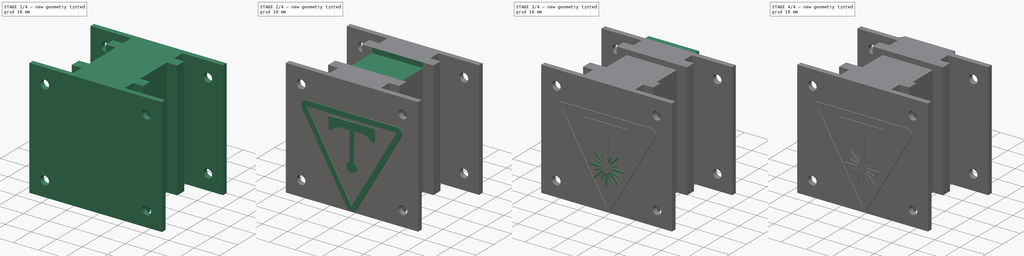
[diagram: build sequence overview — one tinted view per stage of 4, left to right]
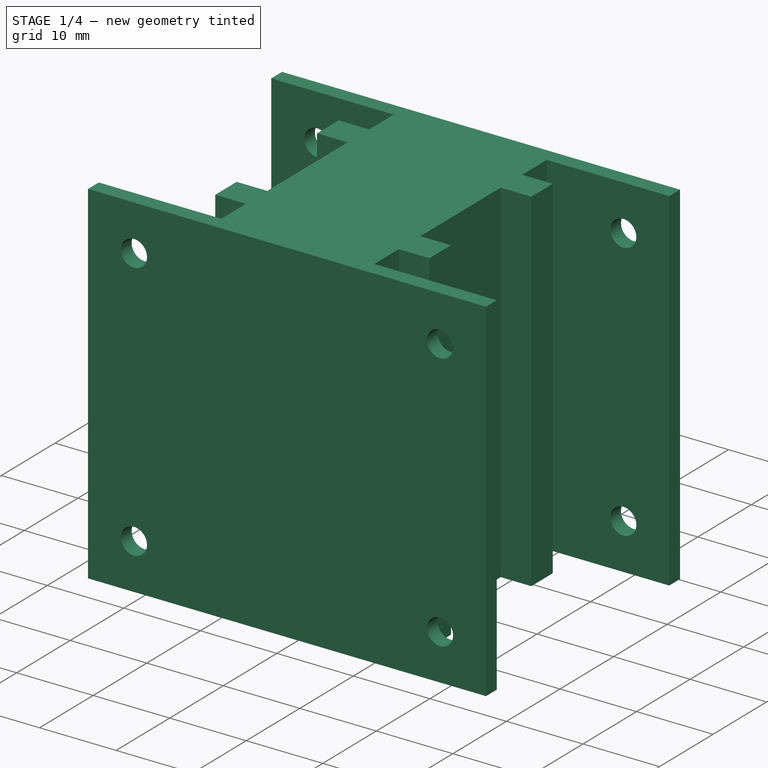
[diagram: stage 1 of 4 — iso view after this stage's code; geometry added in this stage tinted green]
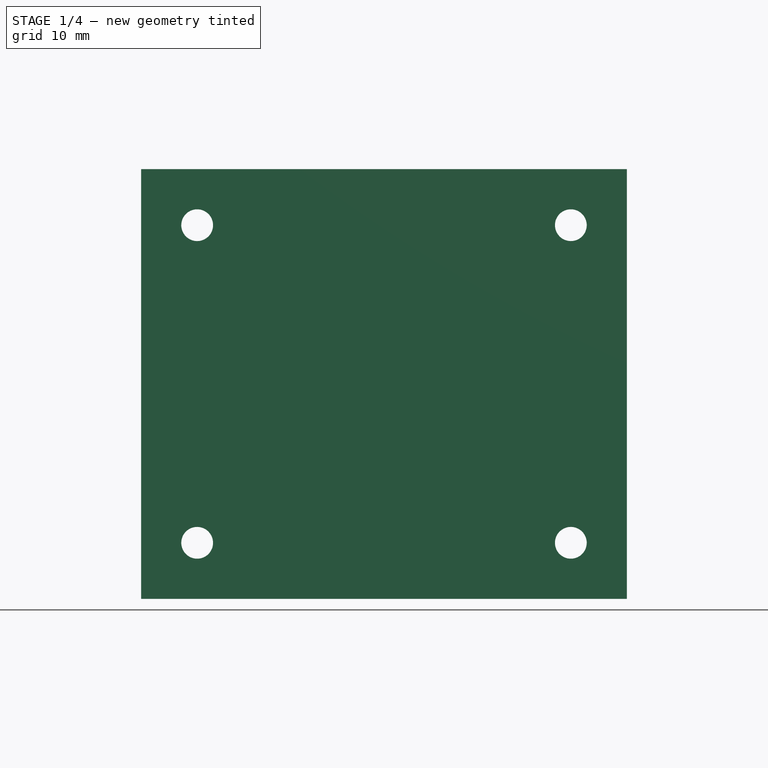
[diagram: stage 1 of 4 — front view after this stage's code; geometry added in this stage tinted green]
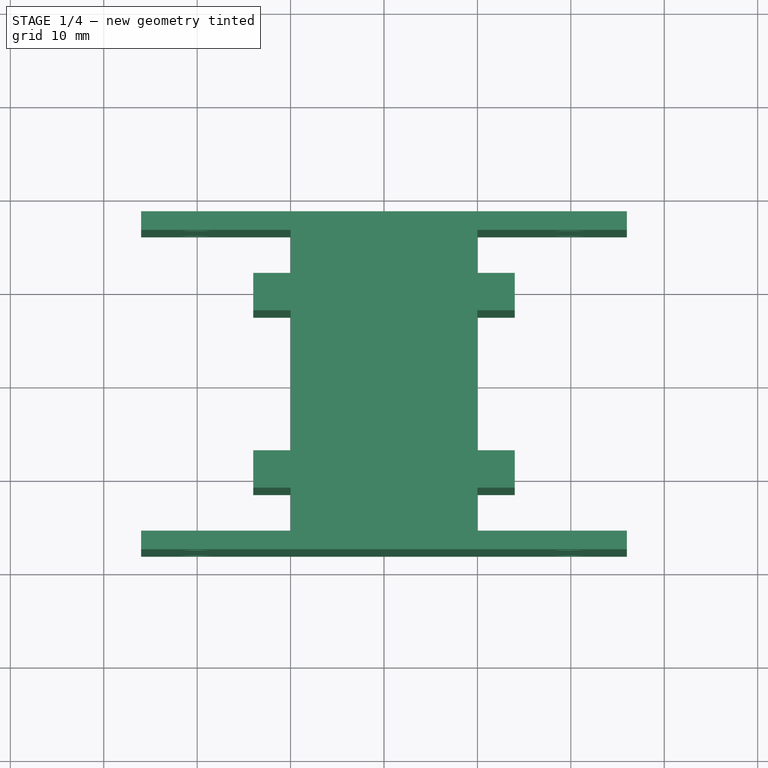
[diagram: stage 1 of 4 — top view after this stage's code; geometry added in this stage tinted green]
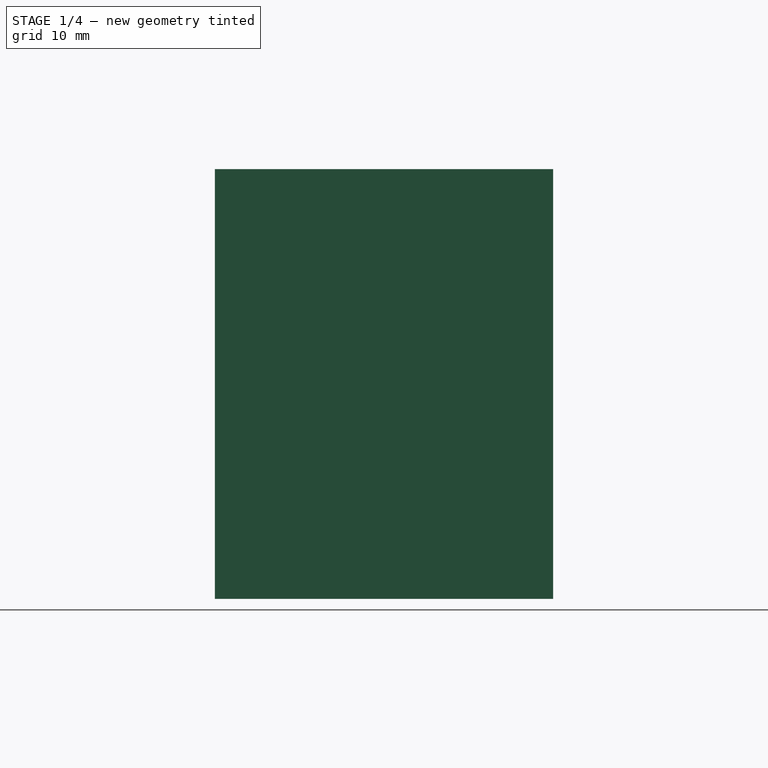
[diagram: stage 1 of 4 — right view after this stage's code; geometry added in this stage tinted green]
FCSTD DOCUMENT  (FreeCAD 0.18.1R)
Label: Base Middle
License: All rights reserved
LicenseURL: http://en.wikipedia.org/wiki/All_rights_reserved
objects: Sketcher::SketchObject×9, PartDesign::Pad×5, PartDesign::Pocket×3, Spreadsheet::Sheet×1, PartDesign::Line×1, PartDesign::PolarPattern×1, PartDesign::Fillet×1, PartDesign::Body×1
note: 29 computed .brp shape members not serialized (recipe doc carries the construction recipe); baked Part::Feature solids carry a one-line shape summary decoded from their .brp

FEATURE [Sketcher::SketchObject] Sketch  label="Sketch Base"
  MapMode = 5
  Support = -> [XY_Plane]
  sketch-geometry (30):
    g0: LineSegment StartX=-26 StartY=18.1 StartZ=0 EndX=-26 EndY=16.1 EndZ=0
    g1: LineSegment StartX=-26 StartY=16.1 StartZ=0 EndX=-10 EndY=16.1 EndZ=0
    g2: LineSegment StartX=-10 StartY=16.1 StartZ=0 EndX=-10 EndY=11.5 EndZ=0
    g3: LineSegment StartX=-10 StartY=11.5 StartZ=0 EndX=-14 EndY=11.5 EndZ=0
    g4: LineSegment StartX=-14 StartY=11.5 StartZ=0 EndX=-14 EndY=7.5 EndZ=0
    g5: LineSegment StartX=-14 StartY=7.5 StartZ=0 EndX=-10 EndY=7.5 EndZ=0
    g6: LineSegment StartX=-10 StartY=7.5 StartZ=0 EndX=-10 EndY=-7.5 EndZ=0
    g7: LineSegment StartX=-10 StartY=-7.5 StartZ=0 EndX=-14 EndY=-7.5 EndZ=0
    g8: LineSegment StartX=-14 StartY=-7.5 StartZ=0 EndX=-14 EndY=-11.5 EndZ=0
    g9: LineSegment StartX=-14 StartY=-11.5 StartZ=0 EndX=-10 EndY=-11.5 EndZ=0
    g10: LineSegment StartX=-10 StartY=-11.5 StartZ=0 EndX=-10 EndY=-16.1 EndZ=0
    g11: LineSegment StartX=-10 StartY=-16.1 StartZ=0 EndX=-26 EndY=-16.1 EndZ=0
    g12: LineSegment StartX=-26 StartY=-16.1 StartZ=0 EndX=-26 EndY=-18.1 EndZ=0
    g13: LineSegment StartX=-26 StartY=-18.1 StartZ=0 EndX=26 EndY=-18.1 EndZ=0
    g14: LineSegment StartX=26 StartY=-18.1 StartZ=0 EndX=26 EndY=-16.1 EndZ=0
    g15: LineSegment StartX=26 StartY=-16.1 StartZ=0 EndX=10 EndY=-16.1 EndZ=0
    g16: LineSegment StartX=10 StartY=-16.1 StartZ=0 EndX=10 EndY=-11.5 EndZ=0
    g17: LineSegment StartX=10 StartY=-11.5 StartZ=0 EndX=14 EndY=-11.5 EndZ=0
    g18: LineSegment StartX=14 StartY=-11.5 StartZ=0 EndX=14 EndY=-7.5 EndZ=0
    g19: LineSegment StartX=14 StartY=-7.5 StartZ=0 EndX=10 EndY=-7.5 EndZ=0
    g20: LineSegment StartX=10 StartY=-7.5 StartZ=0 EndX=10 EndY=7.5 EndZ=0
    g21: LineSegment StartX=10 StartY=7.5 StartZ=0 EndX=14 EndY=7.5 EndZ=0
    g22: LineSegment StartX=14 StartY=7.5 StartZ=0 EndX=14 EndY=11.5 EndZ=0
    g23: LineSegment StartX=14 StartY=11.5 StartZ=0 EndX=10 EndY=11.5 EndZ=0
    g24: LineSegment StartX=10 StartY=11.5 StartZ=0 EndX=10 EndY=16.1 EndZ=0
    g25: LineSegment StartX=10 StartY=16.1 StartZ=0 EndX=26 EndY=16.1 EndZ=0
    g26: LineSegment StartX=26 StartY=16.1 StartZ=0 EndX=26 EndY=18.1 EndZ=0
    g27: LineSegment StartX=26 StartY=18.1 StartZ=0 EndX=-26 EndY=18.1 EndZ=0
    g28: LineSegment [constr] StartX=-10 StartY=7.5 StartZ=0 EndX=10 EndY=-7.5 EndZ=0
    g29: LineSegment [constr] StartX=10 StartY=7.5 StartZ=0 EndX=-10 EndY=-7.5 EndZ=0
  constraints (88):
    c: Coincident(g0,g1)
    c: Horizontal(g1)
    c: Coincident(g1,g2)
    c: Vertical(g2)
    c: Coincident(g2,g3)
    c: Horizontal(g3)
    c: Coincident(g3,g4)
    c: Vertical(g4)
    c: Coincident(g4,g5)
    c: Horizontal(g5)
    c: Coincident(g5,g6)
    c: Vertical(g6)
    c: Coincident(g6,g7)
    c: Horizontal(g7)
    c: Coincident(g7,g8)
    c: Vertical(g8)
    c: Coincident(g8,g9)
    c: Horizontal(g9)
    c: Coincident(g9,g10)
    c: Vertical(g10)
    c: Coincident(g10,g11)
    c: Horizontal(g11)
    c: Coincident(g11,g12)
    c: Vertical(g12)
    c: Coincident(g12,g13)
    c: Horizontal(g13)
    c: Coincident(g13,g14)
    c: Vertical(g14)
    c: Coincident(g14,g15)
    c: Horizontal(g15)
    c: Coincident(g15,g16)
    c: Vertical(g16)
    c: Coincident(g16,g17)
    c: Horizontal(g17)
    c: Coincident(g17,g18)
    c: Vertical(g18)
    c: Coincident(g18,g19)
    c: Horizontal(g19)
    c: Coincident(g19,g20)
    c: Vertical(g20)
    c: Coincident(g20,g21)
    c: Horizontal(g21)
    c: Coincident(g21,g22)
    c: Vertical(g22)
    c: Coincident(g22,g23)
    c: Coincident(g23,g24)
    c: Vertical(g24)
    c: Coincident(g24,g25)
    c: Horizontal(g25)
    c: Coincident(g25,g26)
    c: Vertical(g26)
    c: Coincident(g26,g27)
    c: Horizontal(g27)
    c: Vertical(g0)
    c: Vertical(g0,g12)
    c: Horizontal(g23)
    c: Vertical(g2,g5)
    c: Vertical(g5,g9)
    c: Vertical(g23,g20)
    c: Vertical(g20,g16)
    c: Vertical(g25,g14)
    c: Equal(g0,g26)
    c: Equal(g26,g14)
    c: Equal(g14,g12)
    c: Equal(g10,g2)
    c: Equal(g2,g24)
    c: Equal(g24,g16)
    c: Equal(g4,g5)
    c: Equal(g5,g8)
    c: Equal(g8,g7)
    c: Equal(g7,g18)
    c: Equal(g18,g19)
    c: Equal(g19,g22)
    c: Equal(g22,g23)
    c: Coincident(g27,g0)
    c: Equal(g1,g25)
    c: Distance(g0) = 2
    c: Distance(g4) = 4
    c: Distance(g6) = 15
    c: Distance(g1,g24) = 20
    c: Distance(g13) = 52
    c: Distance(g1,g11) = 32.2
    c: Coincident(g28,g5)
    c: Coincident(g28,g19)
    c: Coincident(g29,g20)
    c: Coincident(g29,g6)
    c: PointOnObject(g-1,g29)
    c: PointOnObject(g-1,g28)
FEATURE [PartDesign::Pad] Pad  label="Base"
  Length = 46
  Length2 = 100
  Profile = -> Sketch
  Type = 0
FEATURE [Sketcher::SketchObject] Sketch001  label="Sketch Base Holes"
  ExternalGeometry = -> [Pad]
  MapMode = 5
  Placement = pos=(0,-18.1,0) rot=(1,0,0;1.5708rad)
  Support = -> [Pad]
  expr: Constraints[8] = Screws.m3tD
  sketch-geometry (8):
    g0: Circle CenterX=-20 CenterY=40 CenterZ=0 NormalX=0 NormalY=0 NormalZ=1 AngleXU=0 Radius=1.7
    g1: Circle CenterX=20 CenterY=40 CenterZ=0 NormalX=0 NormalY=0 NormalZ=1 AngleXU=0 Radius=1.7
    g2: Circle CenterX=20 CenterY=6 CenterZ=0 NormalX=0 NormalY=0 NormalZ=1 AngleXU=0 Radius=1.7
    g3: Circle CenterX=-20 CenterY=6 CenterZ=0 NormalX=0 NormalY=0 NormalZ=1 AngleXU=0 Radius=1.7
    g4: LineSegment [constr] StartX=-26 StartY=46 StartZ=0 EndX=-20 EndY=40 EndZ=0
    g5: LineSegment [constr] StartX=26 StartY=46 StartZ=0 EndX=20 EndY=40 EndZ=0
    g6: LineSegment [constr] StartX=26 StartY=0 StartZ=0 EndX=20 EndY=6 EndZ=0
    g7: LineSegment [constr] StartX=-26 StartY=0 StartZ=0 EndX=-20 EndY=6 EndZ=0
  constraints (20):
    c: Equal(g0,g3)
    c: Equal(g3,g1)
    c: Equal(g1,g2)
    c: Vertical(g3,g0)
    c: Vertical(g1,g2)
    c: Horizontal(g0,g1)
    c: Distance(g0,g1) = 40
    c: Distance(g0,g3) = 34
    c: Diameter(g0) = 3.4
    c: Coincident(g4,g-3)
    c: Coincident(g4,g0)
    c: Coincident(g5,g-4)
    c: Coincident(g5,g1)
    c: Coincident(g6,g-4)
    c: Coincident(g6,g2)
    c: Coincident(g7,g-3)
    c: Coincident(g7,g3)
    c: Equal(g7,g6)
    c: Equal(g6,g4)
    c: Equal(g4,g5)
FEATURE [PartDesign::Pocket] Pocket  label="Base Holes"
  BaseFeature = -> Pad
  Length = 5
  Length2 = 100
  Profile = -> Sketch001
  Type = 1
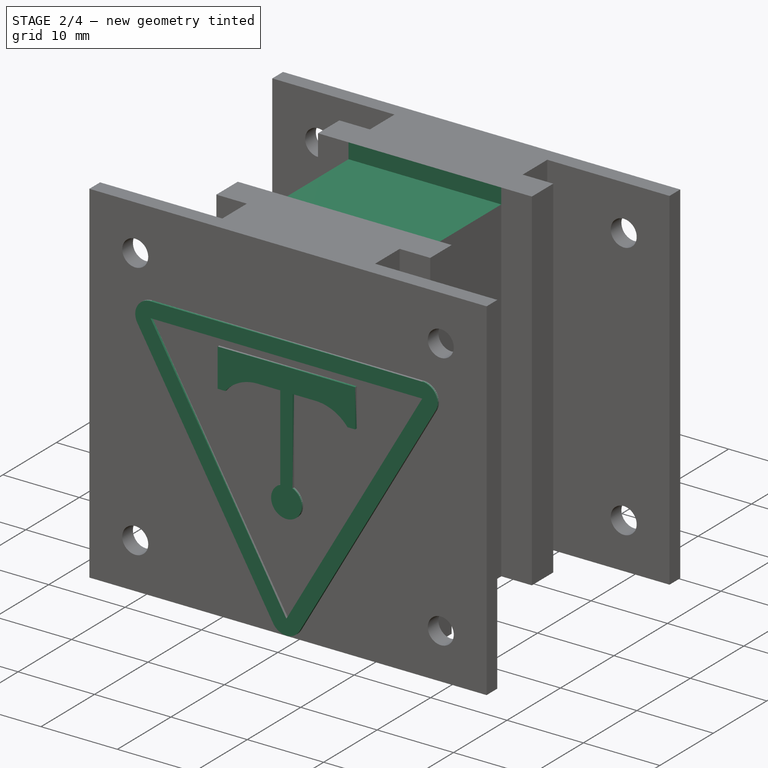
[diagram: stage 2 of 4 — iso view after this stage's code; geometry added in this stage tinted green]
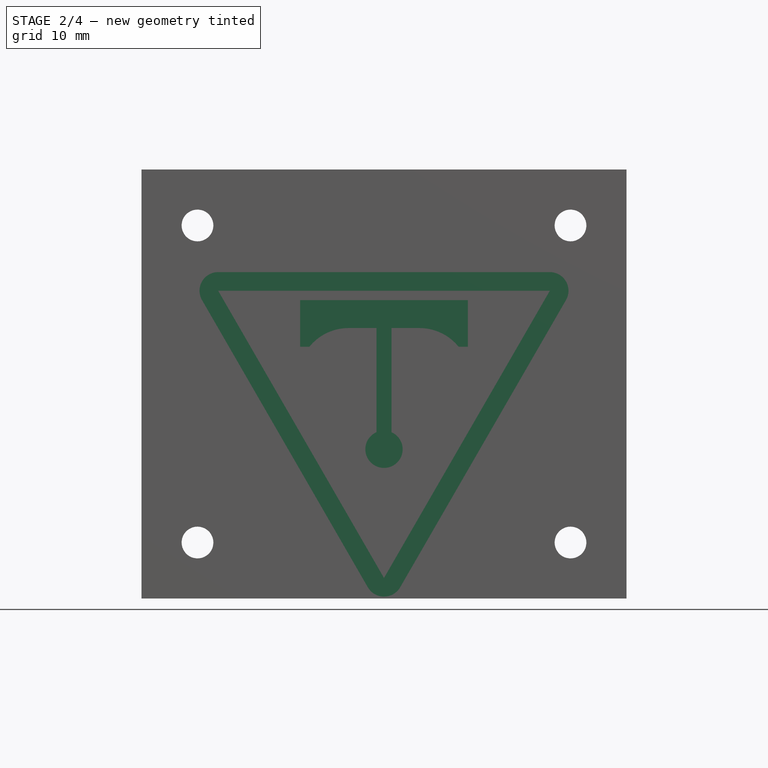
[diagram: stage 2 of 4 — front view after this stage's code; geometry added in this stage tinted green]
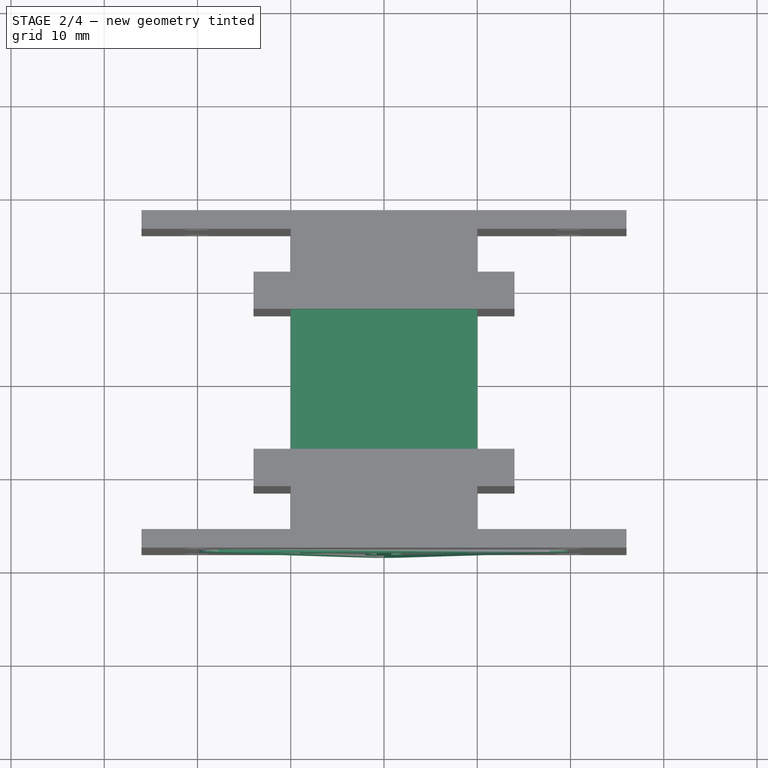
[diagram: stage 2 of 4 — top view after this stage's code; geometry added in this stage tinted green]
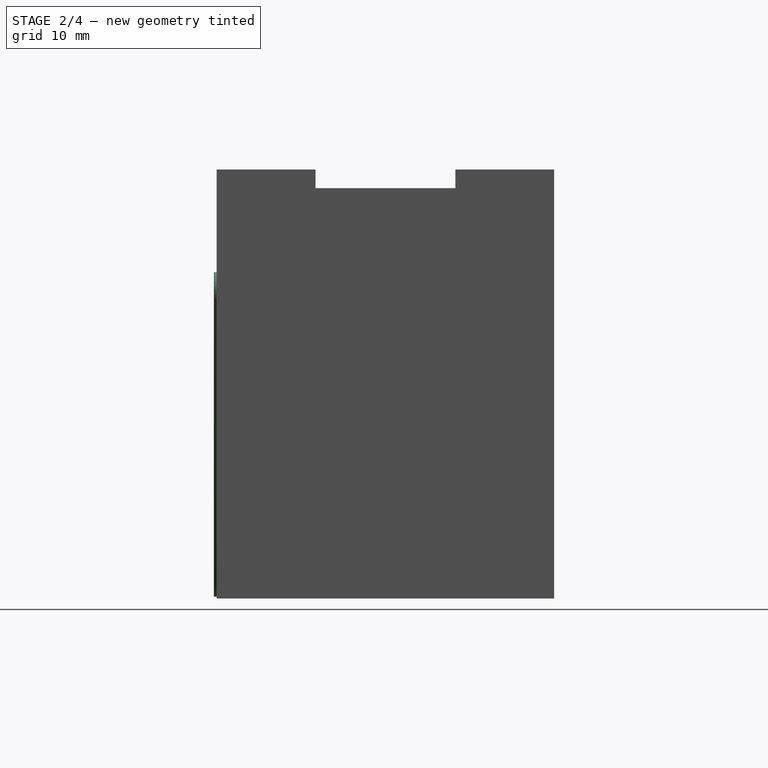
[diagram: stage 2 of 4 — right view after this stage's code; geometry added in this stage tinted green]
FEATURE [Spreadsheet::Sheet] Spreadsheet  label="Screws"
  cells = A1=Screw Type; B1=Length; D1=Diameter Loose; F1=Diameter Tight; A2=M3 Tapping; B2=m3tl; C2(m3tl)==12mm; D2=m3tD; E2(m3tD)==3.4mm; F2=m3td; G2(m3td)==2.8mm; A3=M3; B3=m3l; C3(m3l)==30mm; D3=m3D; E3(m3D)==3.2mm; F3=m3d; G3(m3d)==2.8mm
FEATURE [Sketcher::SketchObject] Sketch002  label="Sketch Rail Cut"
  ExternalGeometry = -> [Pocket]
  MapMode = 5
  Placement = pos=(0,0,46) rot=(0,0,1;0rad)
  Support = -> [Pocket]
  sketch-geometry (4):
    g0: LineSegment StartX=-10 StartY=7.5 StartZ=0 EndX=10 EndY=7.5 EndZ=0
    g1: LineSegment StartX=10 StartY=7.5 StartZ=0 EndX=10 EndY=-7.5 EndZ=0
    g2: LineSegment StartX=10 StartY=-7.5 StartZ=0 EndX=-10 EndY=-7.5 EndZ=0
    g3: LineSegment StartX=-10 StartY=-7.5 StartZ=0 EndX=-10 EndY=7.5 EndZ=0
  constraints (10):
    c: Coincident(g0,g1)
    c: Coincident(g1,g2)
    c: Coincident(g2,g3)
    c: Coincident(g3,g0)
    c: Horizontal(g0)
    c: Horizontal(g2)
    c: Vertical(g1)
    c: Vertical(g3)
    c: Coincident(g1,g-4)
    c: Coincident(g0,g-3)
FEATURE [PartDesign::Pocket] Pocket001  label="Rail Cut"
  BaseFeature = -> Pocket
  Length = 2
  Length2 = 100
  Profile = -> Sketch002
  Type = 0
FEATURE [Sketcher::SketchObject] Sketch003  label="Sketch Logo T"
  MapMode = 5
  Placement = pos=(0,-18.1,0) rot=(1,0,0;1.5708rad)
  Support = -> [Pocket001]
  sketch-geometry (13):
    g0: LineSegment StartX=-9 StartY=27 StartZ=0 EndX=-9 EndY=32 EndZ=0
    g1: LineSegment StartX=-9 StartY=32 StartZ=0 EndX=9 EndY=32 EndZ=0
    g2: LineSegment StartX=9 StartY=32 StartZ=0 EndX=9 EndY=27 EndZ=0
    g3: LineSegment StartX=-0.8 StartY=17.833 StartZ=0 EndX=-0.8 EndY=29 EndZ=0
    g4: LineSegment StartX=-0.8 StartY=29 StartZ=0 EndX=-3.8 EndY=29 EndZ=0
    g5: LineSegment StartX=-9 StartY=27 StartZ=0 EndX=-8 EndY=27 EndZ=0
    g6: LineSegment StartX=9 StartY=27 StartZ=0 EndX=8 EndY=27 EndZ=0
    g7: LineSegment StartX=0.8 StartY=17.833 StartZ=0 EndX=0.8 EndY=29 EndZ=0
    g8: LineSegment StartX=0.8 StartY=29 StartZ=0 EndX=3.8 EndY=29 EndZ=0
    g9: ArcOfCircle CenterX=-3.8 CenterY=23.59 CenterZ=0 NormalX=0 NormalY=0 NormalZ=1 AngleXU=0 Radius=5.41 StartAngle=1.5708 EndAngle=2.45963
    g10: ArcOfCircle CenterX=3.8 CenterY=23.59 CenterZ=0 NormalX=0 NormalY=0 NormalZ=1 AngleXU=0 Radius=5.41 StartAngle=0.681958 EndAngle=1.5708
    g11: Circle [constr] CenterX=0 CenterY=16 CenterZ=0 NormalX=0 NormalY=0 NormalZ=1 AngleXU=0 Radius=2
    g12: ArcOfCircle CenterX=0 CenterY=16 CenterZ=0 NormalX=0 NormalY=0 NormalZ=1 AngleXU=0 Radius=2 StartAngle=1.98231 EndAngle=7.44246
  constraints (39):
    c: Vertical(g0)
    c: Coincident(g0,g1)
    c: Horizontal(g1)
    c: Coincident(g1,g2)
    c: Vertical(g2)
    c: Vertical(g3)
    c: Coincident(g3,g4)
    c: Horizontal(g4)
    c: Coincident(g0,g5)
    c: Horizontal(g5)
    c: Coincident(g2,g6)
    c: Vertical(g7)
    c: Coincident(g7,g8)
    c: Horizontal(g8)
    c: Coincident(g9,g5)
    c: Coincident(g10,g6)
    c: Horizontal(g3,g7)
    c: Horizontal(g7,g3)
    c: Equal(g5,g6)
    c: Equal(g4,g8)
    c: Equal(g9,g10)
    c: Tangent(g9,g4) = -1.5708
    c: Tangent(g10,g8) = 1.5708
    c: Horizontal(g5,g6)
    c: Horizontal(g6)
    c: Distance(g5) = 1
    c: Distance(g3,g7) = 1.6
    c: Distance(g4,g1) = 3
    c: Distance(g4) = 3
    c: Distance(g2) = 5
    c: Distance(g1) = 18
    c: PointOnObject(g11,g-2)
    c: Diameter(g11) = 4
    c: Distance(g11,g-1) = 16
    c: PointOnObject(g3,g11)
    c: Coincident(g12,g11)
    c: Coincident(g12,g3)
    c: Coincident(g12,g7)
    c: Distance(g-1,g1) = 32
FEATURE [PartDesign::Pad] Pad001  label="Logo T"
  BaseFeature = -> Pocket001
  Length = 0.3
  Length2 = 100
  Profile = -> Sketch003
  Type = 0
FEATURE [Sketcher::SketchObject] Sketch004  label="Sketch Logo Triangle"
  ExternalGeometry = -> [Pad001]
  MapMode = 5
  Placement = pos=(0,-18.1,0) rot=(1,0,0;1.5708rad)
  Support = -> [Pad001]
  sketch-geometry (9):
    g0: LineSegment StartX=0 StartY=2.2 StartZ=0 EndX=-17.7824 EndY=33 EndZ=0
    g1: LineSegment StartX=-17.7824 StartY=33 StartZ=0 EndX=17.7824 EndY=33 EndZ=0
    g2: LineSegment StartX=17.7824 StartY=33 StartZ=0 EndX=0 EndY=2.2 EndZ=0
    g3: ArcOfCircle CenterX=-17.7824 CenterY=33 CenterZ=0 NormalX=0 NormalY=0 NormalZ=1 AngleXU=0 Radius=2 StartAngle=1.5708 EndAngle=3.66519
    g4: ArcOfCircle CenterX=17.7824 CenterY=33 CenterZ=0 NormalX=0 NormalY=0 NormalZ=1 AngleXU=0 Radius=2 StartAngle=5.75959 EndAngle=7.85398
    g5: ArcOfCircle CenterX=0 CenterY=2.2 CenterZ=0 NormalX=0 NormalY=0 NormalZ=1 AngleXU=0 Radius=2 StartAngle=3.66519 EndAngle=5.75959
    g6: LineSegment StartX=-19.5144 StartY=32 StartZ=0 EndX=-1.73205 EndY=1.2 EndZ=0
    g7: LineSegment StartX=19.5144 StartY=32 StartZ=0 EndX=1.73205 EndY=1.2 EndZ=0
    g8: LineSegment StartX=-17.7824 StartY=35 StartZ=0 EndX=17.7824 EndY=35 EndZ=0
  constraints (21):
    c: PointOnObject(g0,g-2)
    c: Coincident(g0,g1)
    c: Horizontal(g1)
    c: Coincident(g1,g2)
    c: Coincident(g2,g0)
    c: Equal(g2,g0)
    c: Equal(g0,g1)
    c: Distance(g-3,g1) = 1
    c: Distance(g-1,g0) = 2.2
    c: Coincident(g3,g0)
    c: Coincident(g4,g1)
    c: Coincident(g5,g0)
    c: Horizontal(g8)
    c: Tangent(g8,g3) = 1.5708
    c: Tangent(g6,g3) = -1.5708
    c: Tangent(g8,g4) = 1.5708
    c: Tangent(g7,g4) = 1.5708
    c: Tangent(g7,g5) = 1.5708
    c: Tangent(g6,g5) = -1.5708
    c: Distance(g0,g6) = 2
    c: Parallel(g0,g6)
FEATURE [PartDesign::Pad] Pad002  label="Logo Triangle"
  BaseFeature = -> Pad001
  Length = 0.3
  Length2 = 100
  Profile = -> Sketch004
  Type = 0
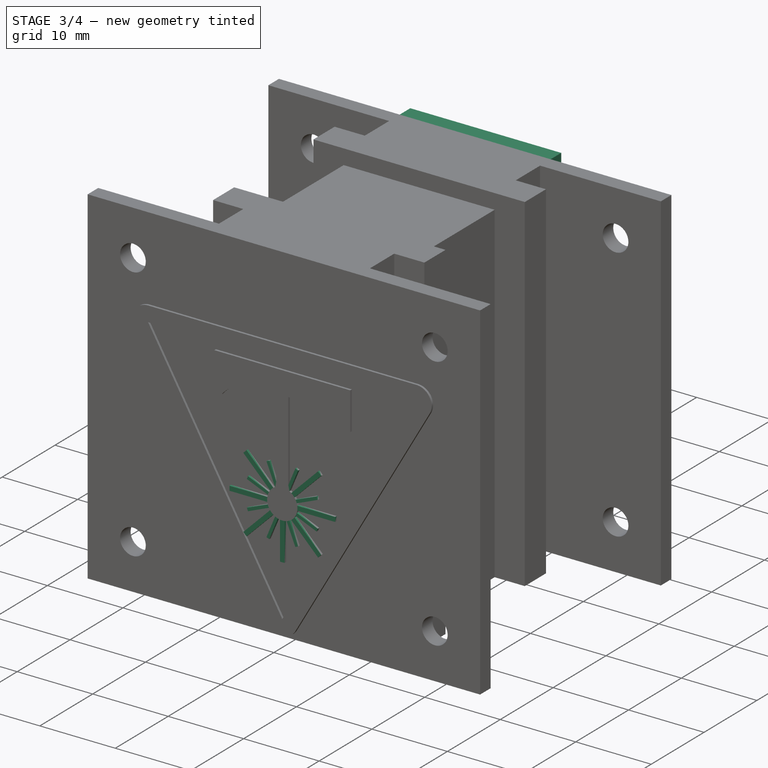
[diagram: stage 3 of 4 — iso view after this stage's code; geometry added in this stage tinted green]
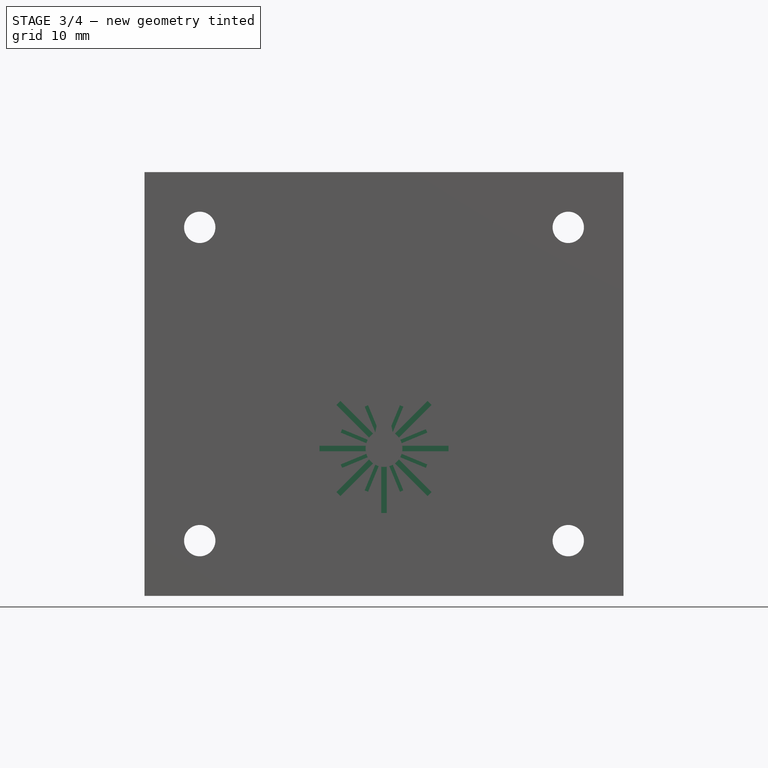
[diagram: stage 3 of 4 — front view after this stage's code; geometry added in this stage tinted green]
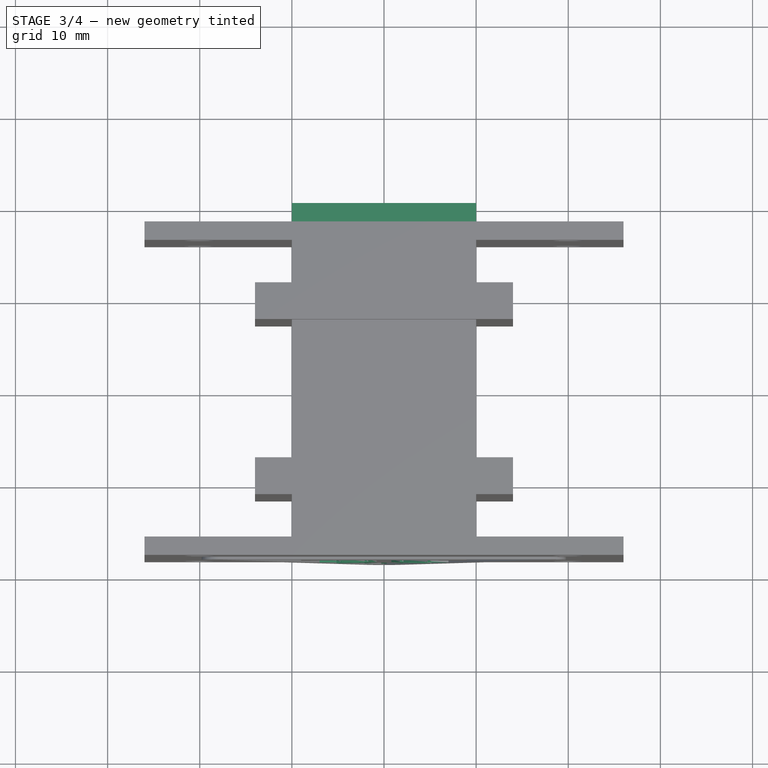
[diagram: stage 3 of 4 — top view after this stage's code; geometry added in this stage tinted green]
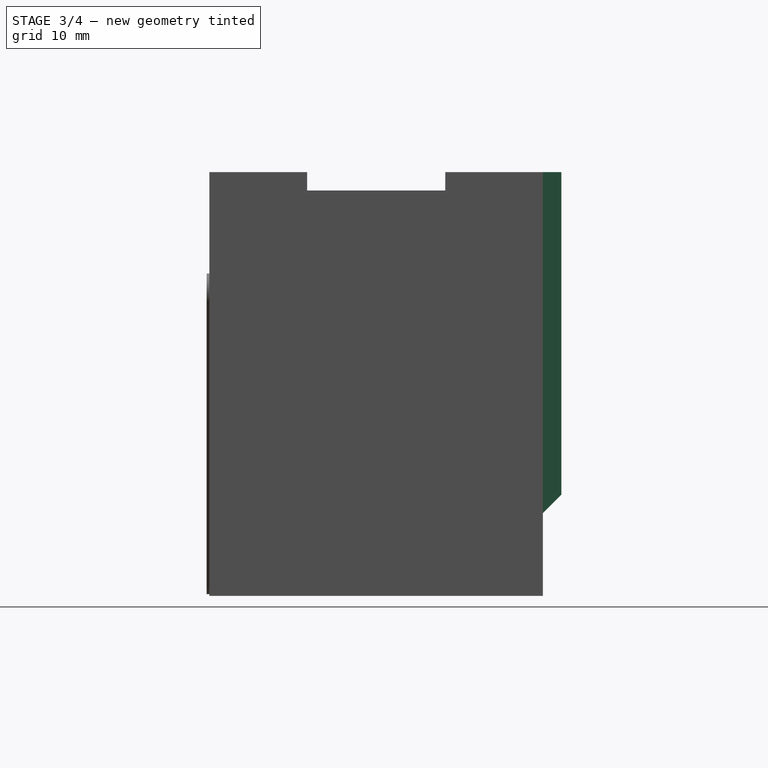
[diagram: stage 3 of 4 — right view after this stage's code; geometry added in this stage tinted green]
FEATURE [Sketcher::SketchObject] Sketch005  label="Sketch Logo Rays"
  ExternalGeometry = -> [Pad002]
  MapMode = 5
  Placement = pos=(0,-18.1,0) rot=(1,0,0;1.5708rad)
  Support = -> [Pad002]
  sketch-geometry (9):
    g0: LineSegment StartX=-0.3 StartY=14.0226 StartZ=0 EndX=-0.3 EndY=9 EndZ=0
    g1: LineSegment StartX=-0.3 StartY=9 StartZ=0 EndX=0.3 EndY=9 EndZ=0
    g2: LineSegment StartX=0.3 StartY=9 StartZ=0 EndX=0.3 EndY=14.0226 EndZ=0
    g3: ArcOfCircle CenterX=0 CenterY=16 CenterZ=0 NormalX=0 NormalY=0 NormalZ=1 AngleXU=0 Radius=2 StartAngle=4.56182 EndAngle=4.86296
    g4: LineSegment StartX=-0.946306 StartY=14.238 StartZ=0 EndX=-2.09819 EndY=11.4571 EndZ=0
    g5: LineSegment StartX=-2.09819 StartY=11.4571 StartZ=0 EndX=-1.72864 EndY=11.3041 EndZ=0
    g6: LineSegment StartX=-1.72864 StartY=11.3041 StartZ=0 EndX=-0.576755 EndY=14.085 EndZ=0
    g7: LineSegment [constr] StartX=0 StartY=16 StartZ=0 EndX=-1.91342 EndY=11.3806 EndZ=0
    g8: ArcOfCircle CenterX=0 CenterY=16 CenterZ=0 NormalX=0 NormalY=0 NormalZ=1 AngleXU=0 Radius=2 StartAngle=4.21952 EndAngle=4.41986
  constraints (26):
    c: PointOnObject(g0,g-3)
    c: Vertical(g0)
    c: Coincident(g0,g1)
    c: Horizontal(g1)
    c: Coincident(g1,g2)
    c: Vertical(g2)
    c: Horizontal(g0,g2)
    c: Distance(g-3,g1) = 7
    c: Coincident(g3,g-3)
    c: Coincident(g3,g0)
    c: Coincident(g3,g2)
    c: PointOnObject(g4,g-3)
    c: Coincident(g4,g5)
    c: Coincident(g5,g6)
    c: Parallel(g6,g4)
    c: Distance(g1) = 0.6
    c: Perpendicular(g5,g4)
    c: Distance(g5) = 0.4
    c: Coincident(g7,g3)
    c: PointOnObject(g7,g5)
    c: Symmetric(g5,g4,g7)
    c: Angle(g7,g-2) = 0.392699
    c: Coincident(g8,g3)
    c: Coincident(g8,g6)
    c: Coincident(g8,g4)
    c: Distance(g3,g5) = 5
FEATURE [PartDesign::Pad] Pad003  label="Logo Rays"
  BaseFeature = -> Pad002
  Length = 0.3
  Length2 = 100
  Profile = -> Sketch005
  Type = 0
FEATURE [Sketcher::SketchObject] Sketch006  label="Sketch Line"
  ExternalGeometry = -> [Pad003]
  MapMode = 5
  Placement = pos=(0,0,0) rot=(0.57735,0.57735,0.57735;2.0944rad)
  Support = -> [YZ_Plane]
  sketch-geometry (1):
    g0: LineSegment StartX=-18.1 StartY=16 StartZ=0 EndX=-64.1 EndY=16 EndZ=0
  constraints (4):
    c: PointOnObject(g0,g-3)
    c: Horizontal(g0)
    c: DistanceY(g-3,g0) = 16
    c: Equal(g-3,g0)
FEATURE [PartDesign::Line] DatumLine
  AttacherType = Attacher::AttachEngineLine
  MapMode = 29
  Placement = pos=(-3.6e-15,3.6e-15,16) rot=(1,0,0;1.5708rad)
  Support = -> [Sketch006]
FEATURE [PartDesign::PolarPattern] PolarPattern  label="Logo PolarPattern Rays"
  Angle = 360
  Axis = -> DatumLine
  BaseFeature = -> Pad003
  Occurrences = 8
  Originals = -> [Pad003]
FEATURE [Sketcher::SketchObject] Sketch007  label="Sketch Back Pad"
  ExternalGeometry = -> [PolarPattern]
  MapMode = 5
  Placement = pos=(0,0,0) rot=(0.57735,0.57735,0.57735;2.0944rad)
  Support = -> [YZ_Plane]
  sketch-geometry (4):
    g0: LineSegment StartX=18.1 StartY=46 StartZ=0 EndX=18.1 EndY=9 EndZ=0
    g1: LineSegment StartX=18.1 StartY=9 StartZ=0 EndX=20.1 EndY=11 EndZ=0
    g2: LineSegment StartX=20.1 StartY=11 StartZ=0 EndX=20.1 EndY=46 EndZ=0
    g3: LineSegment StartX=20.1 StartY=46 StartZ=0 EndX=18.1 EndY=46 EndZ=0
  constraints (11):
    c: PointOnObject(g0,g-3)
    c: Coincident(g0,g1)
    c: Coincident(g1,g2)
    c: Vertical(g2)
    c: Coincident(g2,g3)
    c: Coincident(g3,g0)
    c: Horizontal(g3)
    c: Distance(g3) = 2
    c: Angle(g1,g0) = 0.785398
    c: Distance(g2) = 35
    c: Coincident(g-3,g0)
FEATURE [PartDesign::Pad] Pad004  label="Back Pad"
  BaseFeature = -> PolarPattern
  Length = 20
  Length2 = 100
  Midplane = true
  Profile = -> Sketch007
  Type = 0
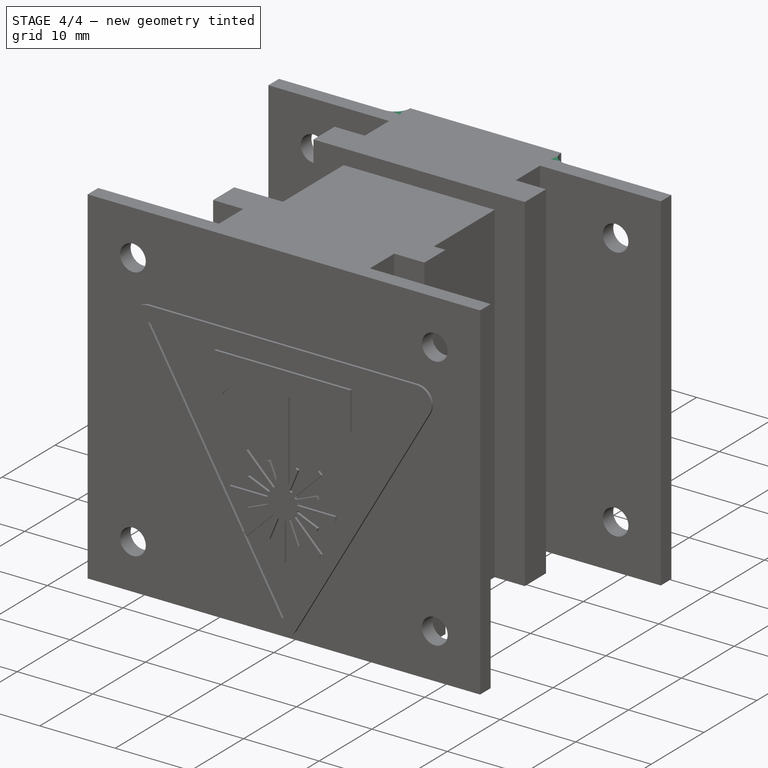
[diagram: stage 4 of 4 — iso view after this stage's code; geometry added in this stage tinted green]
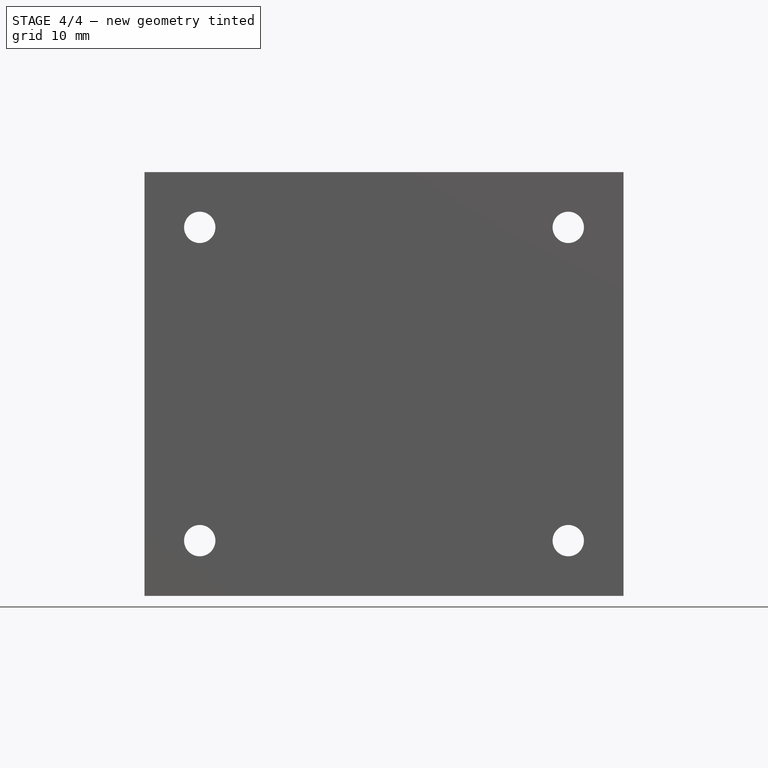
[diagram: stage 4 of 4 — front view after this stage's code; geometry added in this stage tinted green]
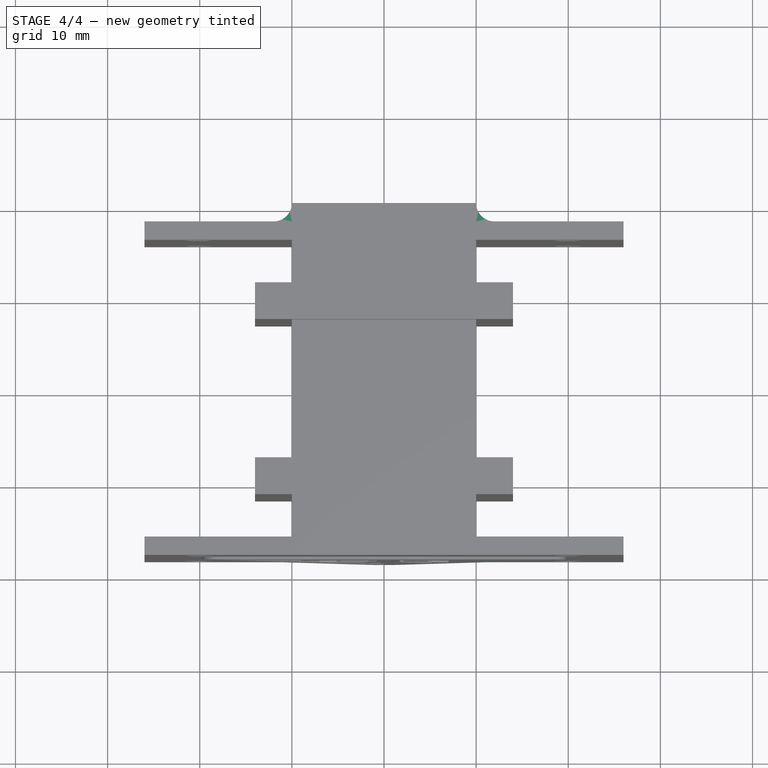
[diagram: stage 4 of 4 — top view after this stage's code; geometry added in this stage tinted green]
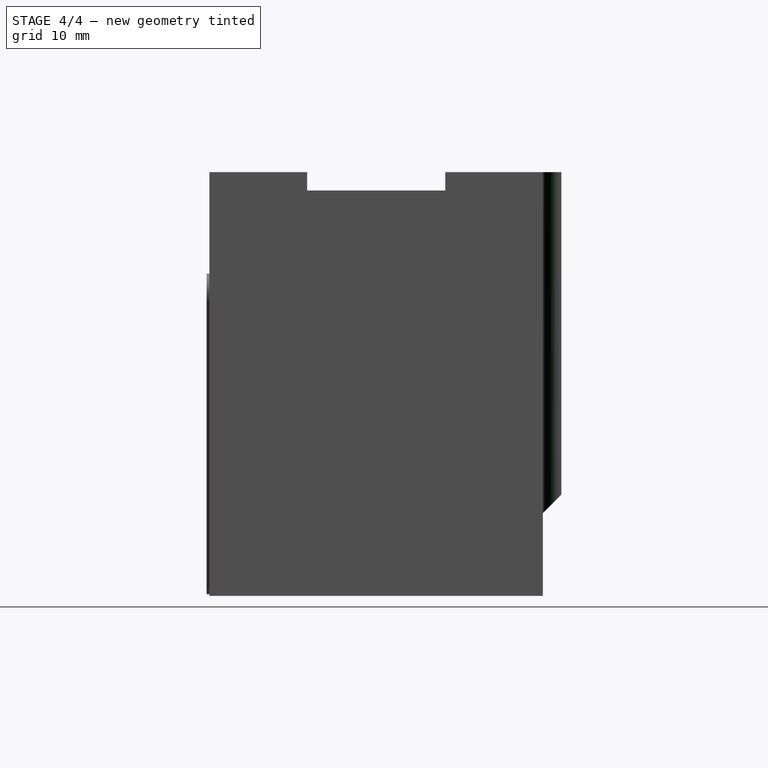
[diagram: stage 4 of 4 — right view after this stage's code; geometry added in this stage tinted green]
FEATURE [PartDesign::Fillet] Fillet  label="Back Fillet"
  Base = -> Pad004 [Edge9,Edge7]
  BaseFeature = -> Pad004
  Radius = 1.99
FEATURE [Sketcher::SketchObject] Sketch008  label="Sketch Back Holes"
  ExternalGeometry = -> [Fillet]
  MapMode = 5
  Placement = pos=(4.5e-15,20.1,-4.5e-15) rot=(0,0.707107,0.707107;3.14159rad)
  Support = -> [Fillet]
  expr: Constraints[5] = Screws.m3d
  sketch-geometry (2):
    g0: Circle CenterX=0 CenterY=21 CenterZ=0 NormalX=0 NormalY=0 NormalZ=1 AngleXU=0 Radius=1.4
    g1: Circle CenterX=0 CenterY=41 CenterZ=0 NormalX=0 NormalY=0 NormalZ=1 AngleXU=0 Radius=1.4
  constraints (6):
    c: PointOnObject(g0,g-2)
    c: PointOnObject(g1,g-2)
    c: Equal(g1,g0)
    c: Distance(g0,g-3) = 10
    c: Distance(g1,g-3) = 30
    c: Diameter(g1) = 2.8
FEATURE [PartDesign::Pocket] Pocket002  label="Back Holes"
  BaseFeature = -> Fillet
  Length = 11
  Length2 = 100
  Profile = -> Sketch008
  Type = 0
  expr: Length = Screws.m3tl - 1mm
FEATURE [PartDesign::Body] Body  label="Base Middle"
  Group = -> [Sketch,Pad,Sketch001,Pocket,Sketch002,Pocket001,Sketch003,Pad001,Sketch004,Pad002,Sketch005,Pad003,Sketch006,DatumLine,PolarPattern,Sketch007,Pad004,Fillet,Sketch008,Pocket002]
  Origin = -> Origin
  Tip = -> Pocket002
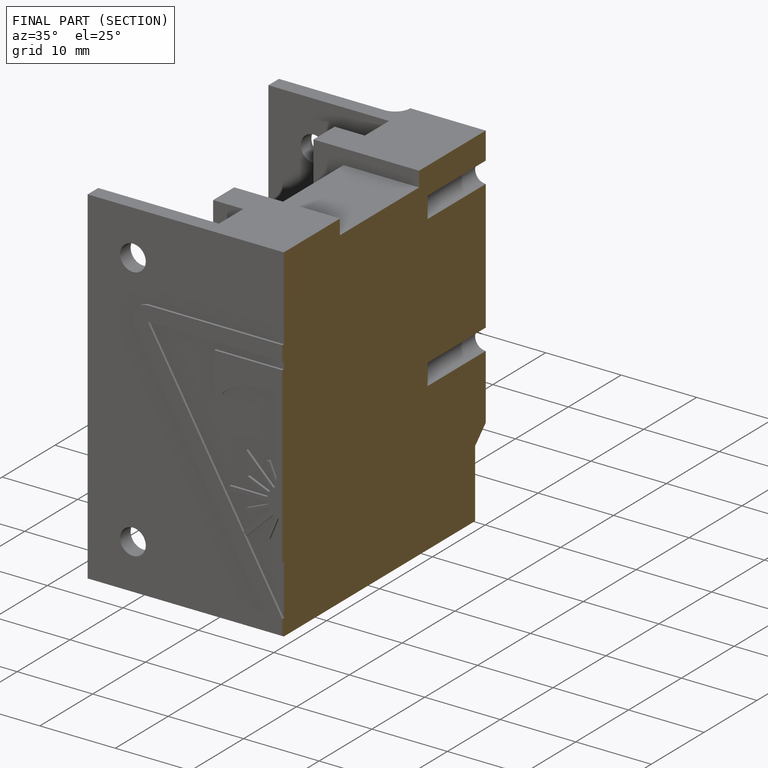
[diagram: finished part — half-section view (interior)]
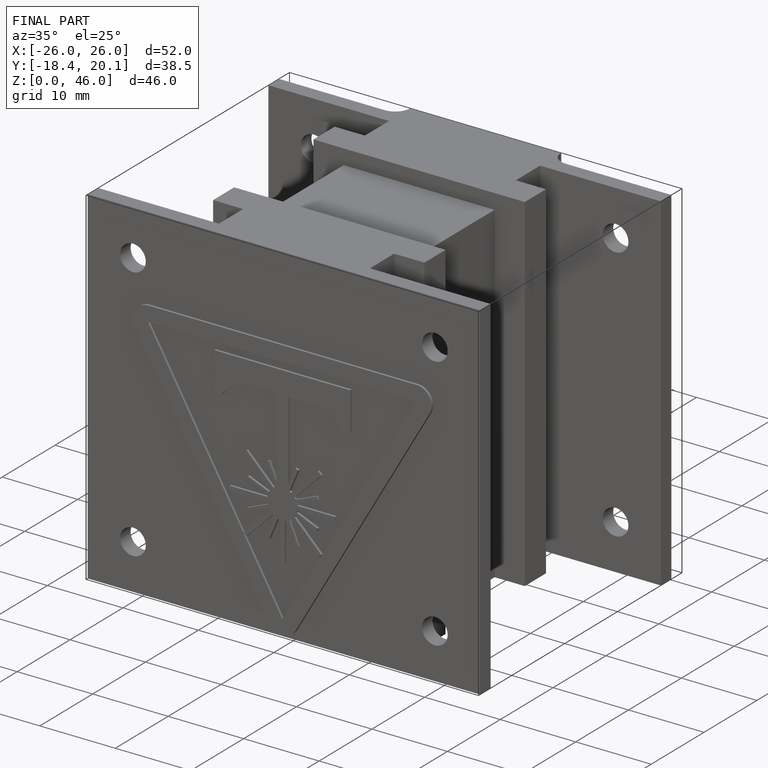
[diagram: finished part — iso view with bounding-box wireframe]
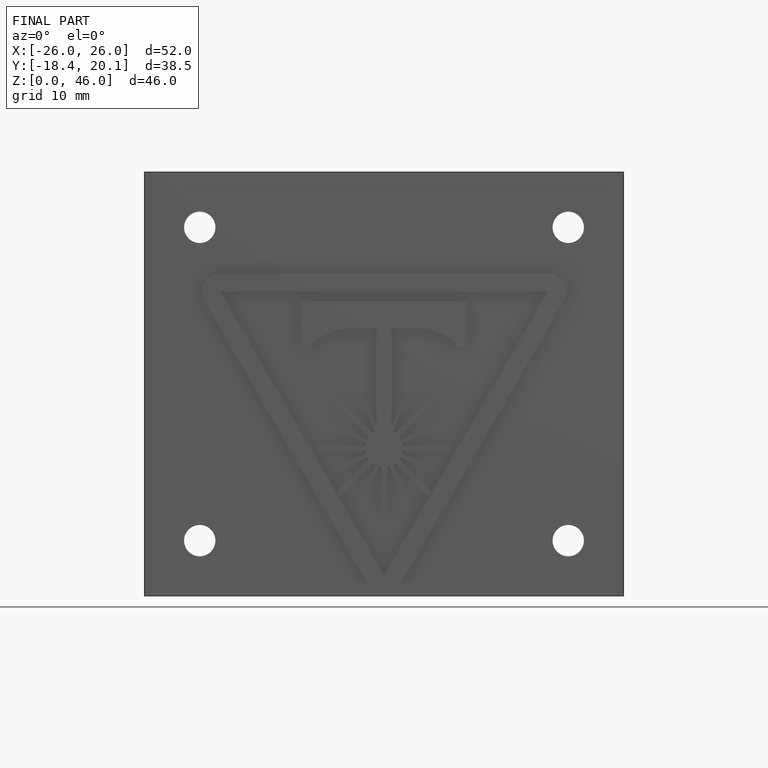
[diagram: finished part — front view with bounding-box wireframe]
